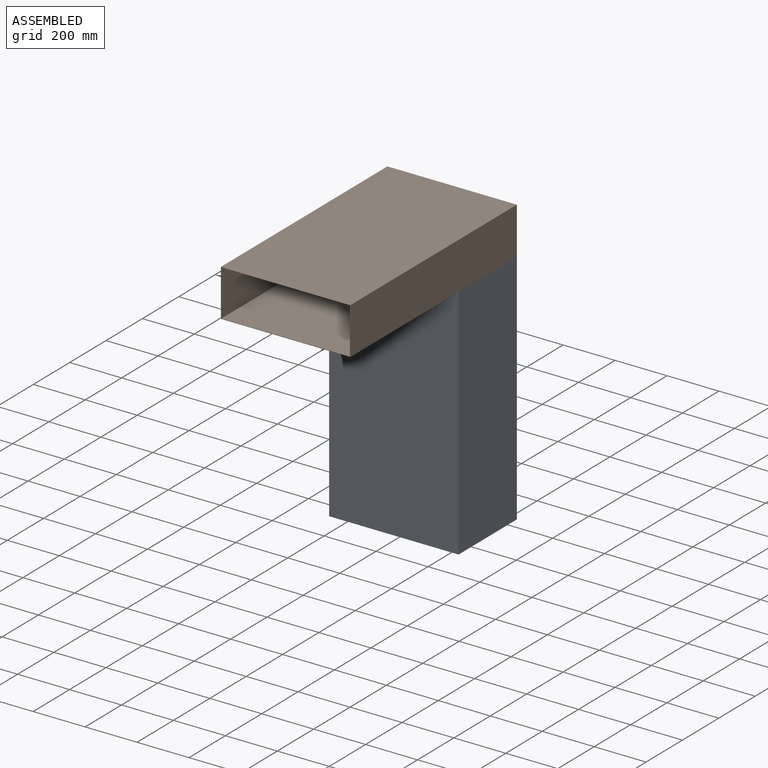
[diagram: assembled view]
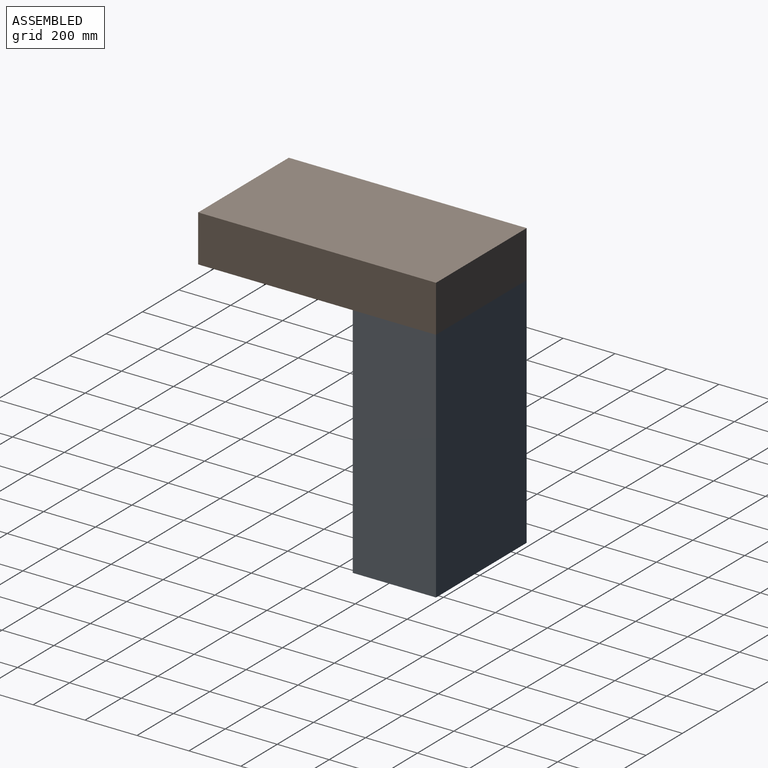
[diagram: assembled view, second angle]
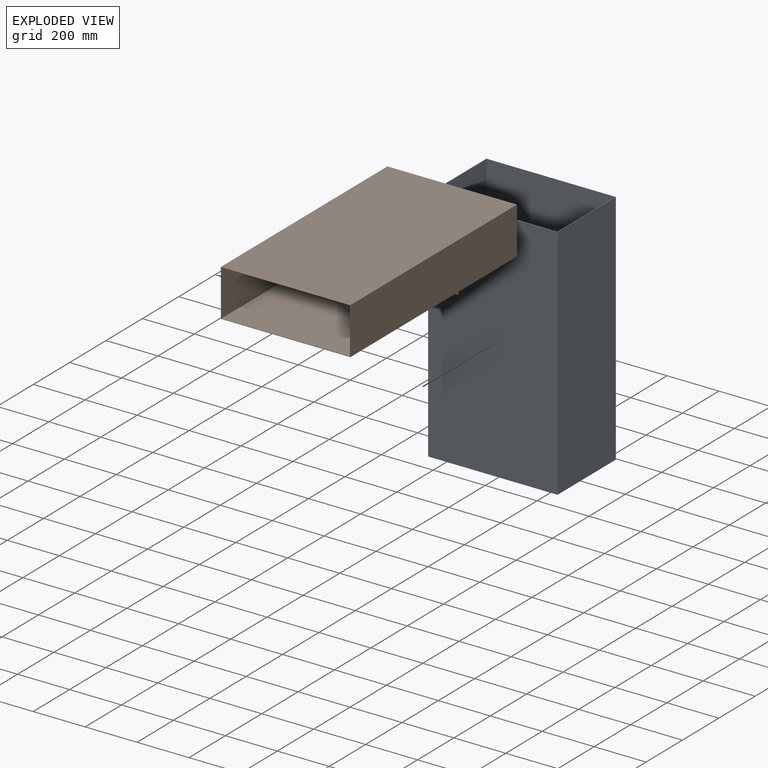
[diagram: exploded view]
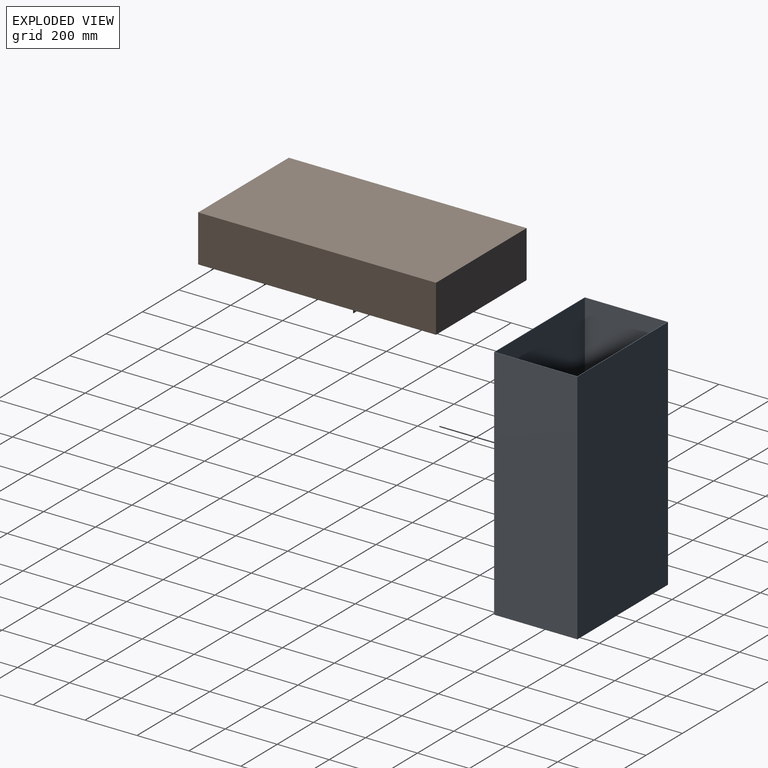
[diagram: exploded view, second angle]
ASSEMBLY  parts=2 mates=3
PART A: 10 faces, bbox 498.5x320.7x914.4 mm
  f0: plane 498.48x320.68mm, normal (0,0,1), area 2590.7mm2, adj f2,f3,f4,f5,f6,f7,f8,f9
  f1: plane 498.48x320.68mm, normal (0,0,-1), area 2590.7mm2, adj f2,f3,f4,f5,f6,f7,f8,f9
  f2: plane 914.4x320.68mm, normal (-1,0,0), area 293225.2mm2, adj f0,f1,f3,f5
  f3: plane 914.4x498.48mm, normal (0,-1,0), area 455805.5mm2, adj f0,f1,f2,f4
  f4: plane 914.4x320.68mm, normal (1,0,0), area 293225.2mm2, adj f0,f1,f3,f5
  f5: plane 914.4x498.48mm, normal (0,1,0), area 455805.5mm2, adj f0,f1,f2,f4
  f6: plane 914.4x317.5mm, normal (1,0,0), area 290322mm2, adj f0,f1,f7,f9
  f7: plane 914.4x495.3mm, normal (0,1,0), area 452902.3mm2, adj f0,f1,f6,f8
  f8: plane 914.4x317.5mm, normal (-1,0,0), area 290322mm2, adj f0,f1,f7,f9
  f9: plane 914.4x495.3mm, normal (0,-1,0), area 452902.3mm2, adj f0,f1,f6,f8
PART B: 16 faces, bbox 498.5x916x192.1 mm
  f0: plane 596.9x495.3mm, normal (0,0,1), area 295644.6mm2, adj f2,f7,f8,f11
  f1: plane 915.99x498.48mm, normal (0,0,-1), area 298552.8mm2, adj f2,f3,f4,f6,f7,f8,f10,f12
  f2: plane 498.48x180.98mm, normal (0,-1,0), area 2147.2mm2, adj f0,f1,f3,f4,f5,f7,f8,f9
  f3: plane 915.99x180.98mm, normal (-1,0,0), area 165770.8mm2, adj f1,f2,f5,f6
  f4: plane 915.99x180.98mm, normal (1,0,0), area 165770.8mm2, adj f1,f2,f5,f6
  f5: plane 915.99x498.48mm, normal (0,0,1), area 456596.9mm2, adj f2,f3,f4,f6
  f6: plane 498.48x180.98mm, normal (0,1,0), area 90211.5mm2, adj f1,f3,f4,f5
  f7: plane 914.4x179.39mm, normal (1,0,0), area 163084.4mm2, adj f0,f1,f2,f9,f10,f11
  f8: plane 914.4x179.39mm, normal (-1,0,0), area 163084.4mm2, adj f0,f1,f2,f9,f10,f11
  f9: plane 914.4x495.3mm, normal (0,0,-1), area 452902.3mm2, adj f2,f7,f8,f10
  f10: plane 495.3x179.39mm, normal (0,-1,0), area 88850.6mm2, adj f1,f7,f8,f9
  f11: plane 495.3x12.7mm, normal (0,1,0), area 6290.3mm2, adj f0,f7,f8,f12,f13,f14
  f12: plane 11.11x1.59mm, normal (1,0,0), area 17.6mm2, adj f1,f11,f13,f15
  f13: plane 495.3x1.59mm, normal (0,0,-1), area 786.3mm2, adj f11,f12,f14,f15
  f14: plane 11.11x1.59mm, normal (-1,0,0), area 17.6mm2, adj f1,f11,f13,f15
  f15: plane 495.3x11.11mm, normal (0,-1,0), area 5504mm2, adj f1,f12,f13,f14
PLACE A t=(-641.6,490.93,-191.96)mm
PLACE B t=(-641.6,-105.97,724.02)mm
MATE planar B.f6 <-> A.f5  axis (0,1,0) through (-393.95,810.02,812.92)mm
MATE planar B.f4 <-> A.f4  axis (1,0,0) through (-144.72,352.02,812.92)mm
MATE planar B.f1 <-> A.f0  axis (0,0,-1) through (-393.95,194.87,722.44)mm
